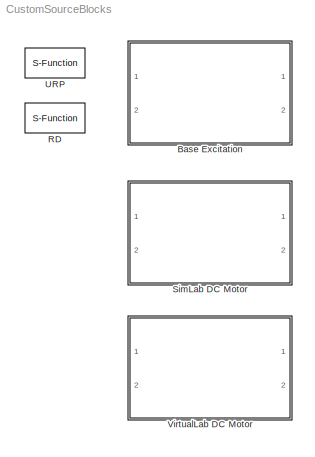
MODEL CustomSourceBlocks
KIND model
CONFIG AbsTol = auto
CONFIG FixedStep = auto
CONFIG MaxStep = auto
CONFIG MinStep = auto
CONFIG RelTol = 1e-3
CONFIG Solver = ode45
CONFIG SolverMode = Auto
CONFIG StartTime = 0.0
CONFIG StopTime = 10.0
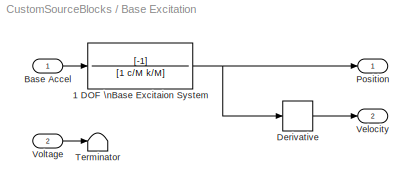
BLOCK [SubSystem] Base Excitation
  Ports = [2, 2]
  TreatAsAtomicUnit = off
BLOCK [TransferFcn] Base Excitation/1 DOF \nBase Excitaion System
  Denominator = [1 c/M k/M]
  Numerator = [-1]
BLOCK [Inport] Base Excitation/Base Accel
BLOCK [Derivative] Base Excitation/Derivative
BLOCK [Outport] Base Excitation/Position
BLOCK [Terminator] Base Excitation/Terminator
BLOCK [Outport] Base Excitation/Velocity
  Port = 2
BLOCK [Inport] Base Excitation/Voltage
  Port = 2
BLOCK [S-Function] RD
  FunctionName = RoundedDisplacementFcn
  MaskCallbackString = |||
  MaskDescription = Output either the position, velocity or acceleration of the Rounded Displacement function.
  MaskDisplay = plot(t,y)
  MaskEnableString = on,on,on,on
  MaskHelp = Generate RD(t), RD'(t), or RD''(t).\n\n\nDescription:\nRD(t) = A*(1-(1+gwt)e^(-gwt)), where A is the amplitude, g (gamma) is the intensity factor, w (omega) is the circular frequency.\n\n\nAmplitude: \nThe amplitude of the pulse, a real number.\n\ngw:\nThe intensity factor multiplied by the frequency (gamma*omega), where T = (2*pi)/gw.\n\nOutput:\nSelect whether to output the RD, or its first or s...<+59ch>
  MaskIconFrame = on
  MaskIconOpaque = on
  MaskIconRotate = none
  MaskIconUnits = normalized
  MaskInitialization = t = [0:0.01:1];\ny = 1-(1+t.*8).*exp(-t.*8);
  MaskPromptString = Amplitude:|Gamma*Omega:|Block Output:|Sample Time
  MaskStyleString = edit,edit,popup(Position|Velocity|Acceleration),edit
  MaskToolTipString = on,on,on,on
  MaskTunableValueString = on,on,on,on
  MaskType = Rounded Displacement (RD)
  MaskValueString = 1|5|Acceleration|0
  MaskVarAliasString = ,,,
  MaskVariables = X=@1;gw=@2;Output=@3;SampleTime=@4;
  MaskVisibilityString = on,on,on,on
  Parameters = X, gw, Output, SampleTime
  Ports = [0, 1]
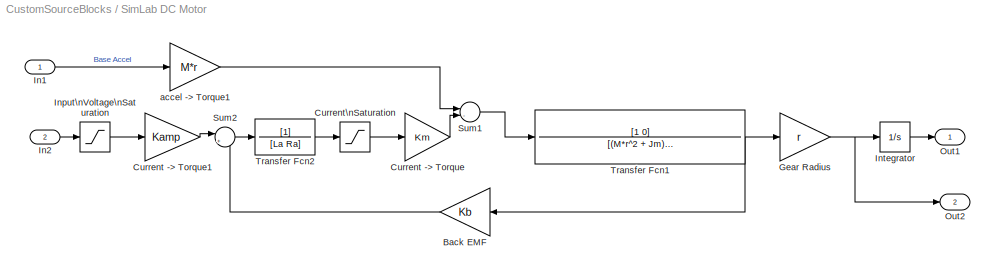
BLOCK [SubSystem] SimLab DC Motor
  MaskDisplay = port_label('input', 1, 'Base Accel')\nport_label('input', 2, 'Voltage')\nport_label('output', 1, 'Position')\nport_label('output', 2, 'Speed')
  MaskIconFrame = on
  MaskIconOpaque = on
  MaskIconRotate = none
  MaskIconUnits = autoscale
  Ports = [2, 2]
  TreatAsAtomicUnit = off
BLOCK [Gain] SimLab DC Motor/Back EMF
  Gain = Kb
BLOCK [Gain] SimLab DC Motor/Current -> Torque
  Gain = Km
BLOCK [Gain] SimLab DC Motor/Current -> Torque1
  Gain = Kamp
BLOCK [Saturate] SimLab DC Motor/Current\nSaturation
  LowerLimit = -4
  UpperLimit = +4
BLOCK [Gain] SimLab DC Motor/Gear Radius
  Gain = r
BLOCK [Inport] SimLab DC Motor/In1
BLOCK [Inport] SimLab DC Motor/In2
  Port = 2
BLOCK [Saturate] SimLab DC Motor/Input\nVoltage\nSaturation
  LowerLimit = -10
  UpperLimit = +10
BLOCK [Integrator] SimLab DC Motor/Integrator
  Ports = [1, 1]
BLOCK [Outport] SimLab DC Motor/Out1
BLOCK [Outport] SimLab DC Motor/Out2
  Port = 2
BLOCK [Sum] SimLab DC Motor/Sum1
  IconShape = round
  InputSameDT = off
  Inputs = |-+
  OutDataTypeMode = Inherit via internal rule
  Ports = [2, 1]
BLOCK [Sum] SimLab DC Motor/Sum2
  IconShape = round
  InputSameDT = off
  Inputs = |+-
  OutDataTypeMode = Inherit via internal rule
  Ports = [2, 1]
BLOCK [TransferFcn] SimLab DC Motor/Transfer Fcn1
  Denominator = [(M*r^2 + Jm) (c*r^2 + Bm) (k*r^2)]
  Numerator = [1 0]
BLOCK [TransferFcn] SimLab DC Motor/Transfer Fcn2
  Denominator = [La Ra]
BLOCK [Gain] SimLab DC Motor/accel -> Torque1
  Gain = M*r
BLOCK [S-Function] URP
  FunctionName = URPFcn
  MaskCallbackString = |||
  MaskDescription = Output either the position, velocity or acceleration of the Unidirectional Rounded Pulse function.
  MaskDisplay = plot(t,y)
  MaskEnableString = on,on,on,on
  MaskHelp = Generate URP(t), URP'(t), or URP''(t).\n\n\nDescription:\nURP(t) = A*(e^2)/4*(g*w*t)^2*e^-g*w*t, where A is the amplitude, g (gamma) is the intensity factor, w (omega) is the circular frequency.\n\n\nAmplitude: \nThe amplitude of the pulse, a real number.\n\ngw:\nThe intensity factor multiplied by the frequency (gamma*omega), where T = (2*pi)/gw.\n\nOutput:\nSelect whether to output the URP, or it...<+71ch>
  MaskIconFrame = on
  MaskIconOpaque = on
  MaskIconRotate = none
  MaskIconUnits = normalized
  MaskInitialization = t = [0:0.01:1];\ny = exp(2)/4*(11)^2*exp(-t.*11).*t.^2;
  MaskPromptString = Amplitude:|Gamma*Omega:|Block Output:|Sample Time
  MaskStyleString = edit,edit,popup(Position|Velocity|Acceleration),edit
  MaskToolTipString = on,on,on,on
  MaskTunableValueString = on,on,on,on
  MaskType = Unidirectional Rounded Pulse (URP)
  MaskValueString = 1|5|Position|0
  MaskVarAliasString = ,,,
  MaskVariables = X=@1;gw=@2;Output=@3;SampleTime=@4;
  MaskVisibilityString = on,on,on,on
  Parameters = X, gw, Output, SampleTime
  Ports = [0, 1]
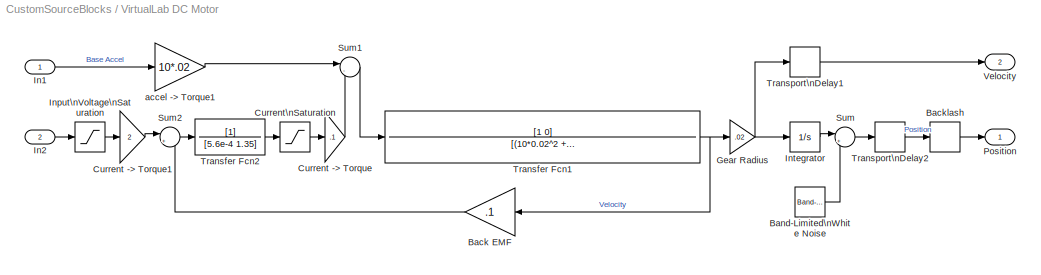
BLOCK [SubSystem] VirtualLab DC Motor
  MaskDisplay = port_label('input', 1, 'Base Accel')\nport_label('input', 2, 'Voltage')\nport_label('output', 1, 'Position')\nport_label('output', 2, 'Speed')
  MaskIconFrame = on
  MaskIconOpaque = on
  MaskIconRotate = none
  MaskIconUnits = autoscale
  Ports = [2, 2]
  TreatAsAtomicUnit = off
BLOCK [Gain] VirtualLab DC Motor/Back EMF
  Gain = .1
BLOCK [Backlash] VirtualLab DC Motor/Backlash
  BacklashWidth = 0.0001
BLOCK [Reference] VirtualLab DC Motor/Band-Limited\nWhite Noise  REF=simulink/Sources/Band-Limited\nWhite Noise
  Cov = 0
  Ports = [0, 1]
  SourceBlock = simulink/Sources/Band-Limited\nWhite Noise
  SourceType = Continuous White Noise.
  Ts = 0.01
  VectorParams1D = on
  seed = [23341]
BLOCK [Gain] VirtualLab DC Motor/Current -> Torque
  Gain = .1
BLOCK [Gain] VirtualLab DC Motor/Current -> Torque1
  Gain = 2
BLOCK [Saturate] VirtualLab DC Motor/Current\nSaturation
  LowerLimit = -4
  UpperLimit = +4
BLOCK [Gain] VirtualLab DC Motor/Gear Radius
  Gain = .02
BLOCK [Inport] VirtualLab DC Motor/In1
BLOCK [Inport] VirtualLab DC Motor/In2
  Port = 2
BLOCK [Saturate] VirtualLab DC Motor/Input\nVoltage\nSaturation
  LowerLimit = -10
  UpperLimit = +10
BLOCK [Integrator] VirtualLab DC Motor/Integrator
  Ports = [1, 1]
BLOCK [Outport] VirtualLab DC Motor/Position
BLOCK [Sum] VirtualLab DC Motor/Sum
  IconShape = round
  InputSameDT = off
  Inputs = |++
  OutDataTypeMode = Inherit via internal rule
  Ports = [2, 1]
BLOCK [Sum] VirtualLab DC Motor/Sum1
  IconShape = round
  InputSameDT = off
  Inputs = |-+
  OutDataTypeMode = Inherit via internal rule
  Ports = [2, 1]
BLOCK [Sum] VirtualLab DC Motor/Sum2
  IconShape = round
  InputSameDT = off
  Inputs = |+-
  OutDataTypeMode = Inherit via internal rule
  Ports = [2, 1]
BLOCK [TransferFcn] VirtualLab DC Motor/Transfer Fcn1
  Denominator = [(10*0.02^2 + 1.9e-7) (.9135*.02^2 + 7.92e-4) (2.1735*.02^2)]
  Numerator = [1 0]
BLOCK [TransferFcn] VirtualLab DC Motor/Transfer Fcn2
  Denominator = [5.6e-4 1.35]
BLOCK [TransportDelay] VirtualLab DC Motor/Transport\nDelay1
  BufferSize = 4096
  DelayTime = .001
BLOCK [TransportDelay] VirtualLab DC Motor/Transport\nDelay2
  BufferSize = 4096
  DelayTime = .001
BLOCK [Outport] VirtualLab DC Motor/Velocity
  Port = 2
BLOCK [Gain] VirtualLab DC Motor/accel -> Torque1
  Gain = 10*.02
NET Base Excitation/1 DOF \nBase Excitaion System:1 -> Base Excitation/Derivative:1, Base Excitation/Position:1
LINE Base Excitation/Base Accel:1 -> Base Excitation/1 DOF \nBase Excitaion System:1
LINE Base Excitation/Derivative:1 -> Base Excitation/Velocity:1
LINE Base Excitation/Voltage:1 -> Base Excitation/Terminator:1
LINE SimLab DC Motor/Back EMF:1 -> SimLab DC Motor/Sum2:2
LINE SimLab DC Motor/Current -> Torque1:1 -> SimLab DC Motor/Sum2:1
LINE SimLab DC Motor/Current -> Torque:1 -> SimLab DC Motor/Sum1:2
LINE SimLab DC Motor/Current\nSaturation:1 -> SimLab DC Motor/Current -> Torque:1
NET SimLab DC Motor/Gear Radius:1 -> SimLab DC Motor/Integrator:1, SimLab DC Motor/Out2:1
LINE SimLab DC Motor/In1:1 -> SimLab DC Motor/accel -> Torque1:1
LINE SimLab DC Motor/In2:1 -> SimLab DC Motor/Input\nVoltage\nSaturation:1
LINE SimLab DC Motor/Input\nVoltage\nSaturation:1 -> SimLab DC Motor/Current -> Torque1:1
LINE SimLab DC Motor/Integrator:1 -> SimLab DC Motor/Out1:1
LINE SimLab DC Motor/Sum1:1 -> SimLab DC Motor/Transfer Fcn1:1
LINE SimLab DC Motor/Sum2:1 -> SimLab DC Motor/Transfer Fcn2:1
NET SimLab DC Motor/Transfer Fcn1:1 -> SimLab DC Motor/Back EMF:1, SimLab DC Motor/Gear Radius:1
LINE SimLab DC Motor/Transfer Fcn2:1 -> SimLab DC Motor/Current\nSaturation:1
LINE SimLab DC Motor/accel -> Torque1:1 -> SimLab DC Motor/Sum1:1
LINE VirtualLab DC Motor/Back EMF:1 -> VirtualLab DC Motor/Sum2:2
LINE VirtualLab DC Motor/Backlash:1 -> VirtualLab DC Motor/Position:1
LINE VirtualLab DC Motor/Band-Limited\nWhite Noise:1 -> VirtualLab DC Motor/Sum:2
LINE VirtualLab DC Motor/Current -> Torque1:1 -> VirtualLab DC Motor/Sum2:1
LINE VirtualLab DC Motor/Current -> Torque:1 -> VirtualLab DC Motor/Sum1:2
LINE VirtualLab DC Motor/Current\nSaturation:1 -> VirtualLab DC Motor/Current -> Torque:1
NET VirtualLab DC Motor/Gear Radius:1 -> VirtualLab DC Motor/Integrator:1, VirtualLab DC Motor/Transport\nDelay1:1
LINE VirtualLab DC Motor/In1:1 -> VirtualLab DC Motor/accel -> Torque1:1
LINE VirtualLab DC Motor/In2:1 -> VirtualLab DC Motor/Input\nVoltage\nSaturation:1
LINE VirtualLab DC Motor/Input\nVoltage\nSaturation:1 -> VirtualLab DC Motor/Current -> Torque1:1
LINE VirtualLab DC Motor/Integrator:1 -> VirtualLab DC Motor/Sum:1
LINE VirtualLab DC Motor/Sum1:1 -> VirtualLab DC Motor/Transfer Fcn1:1
LINE VirtualLab DC Motor/Sum2:1 -> VirtualLab DC Motor/Transfer Fcn2:1
LINE VirtualLab DC Motor/Sum:1 -> VirtualLab DC Motor/Transport\nDelay2:1
NET VirtualLab DC Motor/Transfer Fcn1:1 -> VirtualLab DC Motor/Back EMF:1, VirtualLab DC Motor/Gear Radius:1
LINE VirtualLab DC Motor/Transfer Fcn2:1 -> VirtualLab DC Motor/Current\nSaturation:1
LINE VirtualLab DC Motor/Transport\nDelay1:1 -> VirtualLab DC Motor/Velocity:1
LINE VirtualLab DC Motor/Transport\nDelay2:1 -> VirtualLab DC Motor/Backlash:1
LINE VirtualLab DC Motor/accel -> Torque1:1 -> VirtualLab DC Motor/Sum1:1
note: NET lines group one-source signal fan-out (src -> all destinations, sorted); 1:1 wires keep LINE
